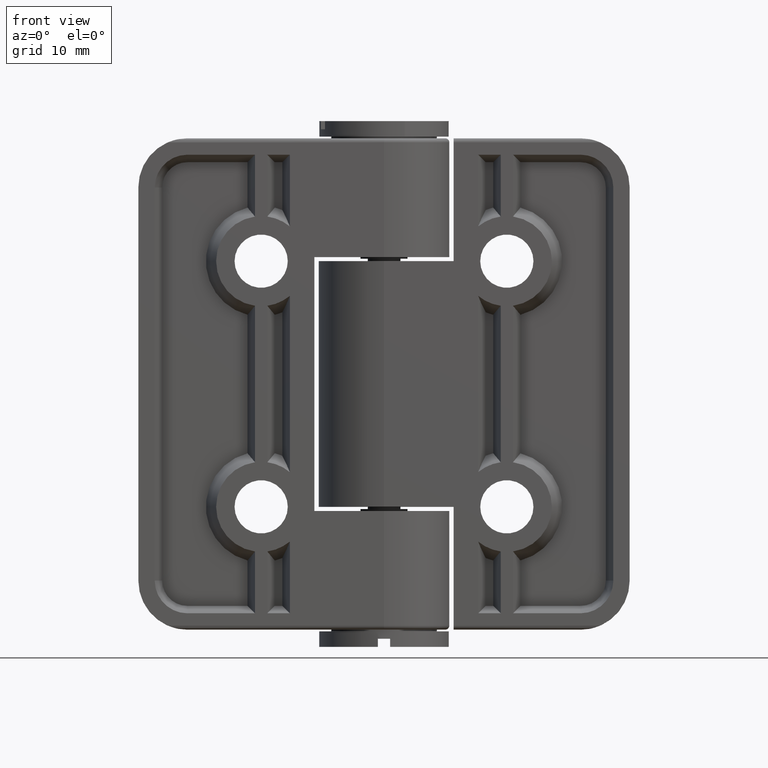
[diagram: clean part render]
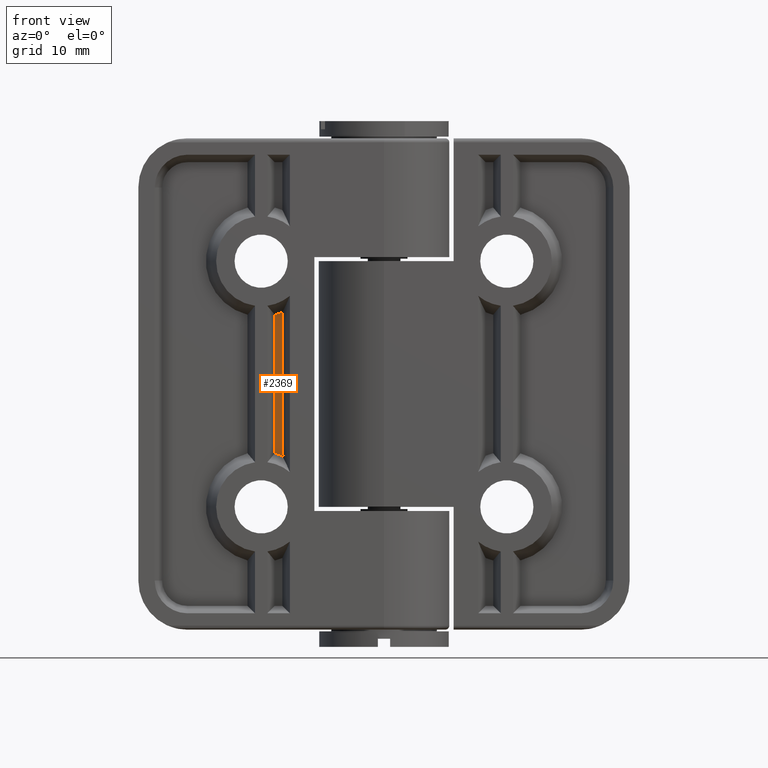
[diagram: same view with one face highlighted and labeled with its STEP entity id]
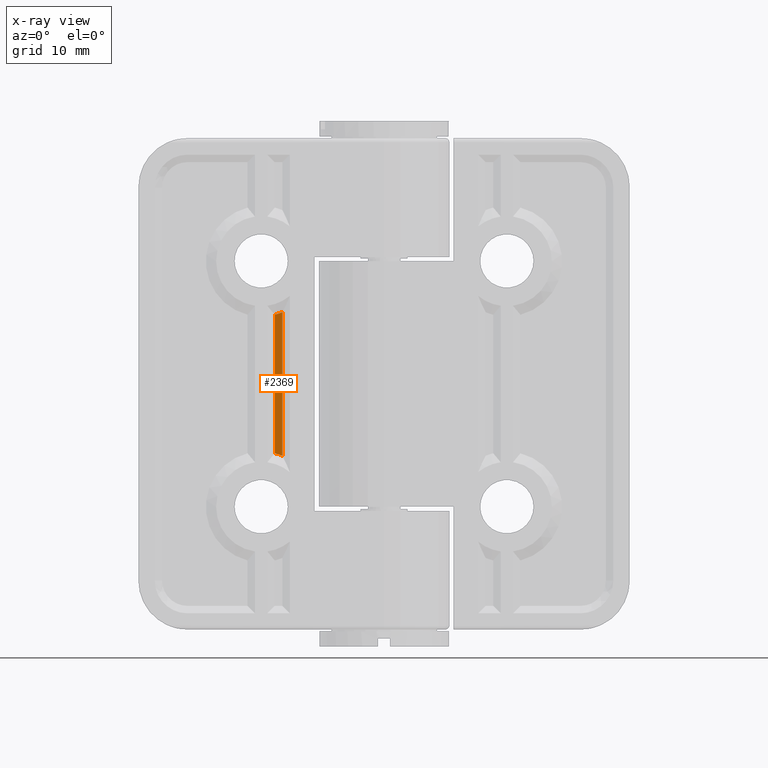
[diagram: x-ray of the same camera — body ghosted, the highlighted face saturated]
A machine part, front view. The second image highlights one B-rep face of the part: STEP entity #2369.
The next image is the same camera in x-ray: the body ghosted, the highlighted face saturated — about 0% of this face is hidden behind the body in this view.
In plain terms, the highlighted planar face has unit normal (0, -1, 0).
Its self-contained STEP definition (entity closure, byte-faithful):
#336=FACE_OUTER_BOUND('',#532,.T.);
#532=EDGE_LOOP('',(#2001,#2002,#2003,#2004));
#696=LINE('',#3901,#846);
#728=LINE('',#4044,#878);
#846=VECTOR('',#3101,16.9145658000886);
#878=VECTOR('',#3217,17.5334023040431);
#994=CIRCLE('',#2614,6.75);
#995=CIRCLE('',#2617,6.75);
#1172=VERTEX_POINT('',#3895);
#1174=VERTEX_POINT('',#3900);
#1211=VERTEX_POINT('',#4033);
#1213=VERTEX_POINT('',#4043);
#1435=EDGE_CURVE('',#1174,#1172,#696,.T.);
#1494=EDGE_CURVE('',#1172,#1211,#994,.T.);
#1497=EDGE_CURVE('',#1211,#1213,#728,.T.);
#1498=EDGE_CURVE('',#1213,#1174,#995,.T.);
#2001=ORIENTED_EDGE('',*,*,#1435,.T.);
#2002=ORIENTED_EDGE('',*,*,#1494,.T.);
#2003=ORIENTED_EDGE('',*,*,#1497,.T.);
#2004=ORIENTED_EDGE('',*,*,#1498,.T.);
#2248=PLANE('',#2616);
#2369=ADVANCED_FACE('',(#336),#2248,.T.);
#2614=AXIS2_PLACEMENT_3D('',#4037,#3209,#3210);
#2616=AXIS2_PLACEMENT_3D('',#4042,#3215,#3216);
#2617=AXIS2_PLACEMENT_3D('',#4045,#3218,#3219);
#3101=DIRECTION('',(7.39385273411066E-17,1.77737877354128E-33,-1.));
#3209=DIRECTION('center_axis',(-2.96059473233375E-16,1.,-2.01128226827183E-32));
#3210=DIRECTION('ref_axis',(-1.,-2.96059473233375E-16,6.96813921015955E-49));
#3215=DIRECTION('center_axis',(2.96059473233375E-16,-1.,2.01128226827183E-32));
#3216=DIRECTION('ref_axis',(0.,0.,-1.));
#3217=DIRECTION('',(-1.58603289232165E-16,-5.24508580599077E-32,1.));
#3218=DIRECTION('center_axis',(-2.96059473233375E-16,1.,-2.01128226827183E-32));
#3219=DIRECTION('ref_axis',(-1.,-2.96059473233375E-16,-6.96813921015954E-49));
#3895=CARTESIAN_POINT('',(-13.3400744143345,-5.50000000000001,-8.45728290004428));
#3900=CARTESIAN_POINT('',(-13.3400744143345,-5.50000000000001,8.45728290004428));
#3901=CARTESIAN_POINT('',(-13.3400744143345,-5.50000000000001,4.75));
#4033=CARTESIAN_POINT('',(-12.4099255856655,-5.50000000000001,-8.76670115202153));
#4037=CARTESIAN_POINT('Origin',(-15.,-5.50000000000001,-15.));
#4042=CARTESIAN_POINT('Origin',(-19.3747443410672,-5.50000000000001,-1.44367321643214E-15));
#4043=CARTESIAN_POINT('',(-12.4099255856655,-5.50000000000001,8.76670115202152));
#4044=CARTESIAN_POINT('',(-12.4099255856655,-5.50000000000001,28.));
#4045=CARTESIAN_POINT('Origin',(-15.,-5.50000000000001,15.));